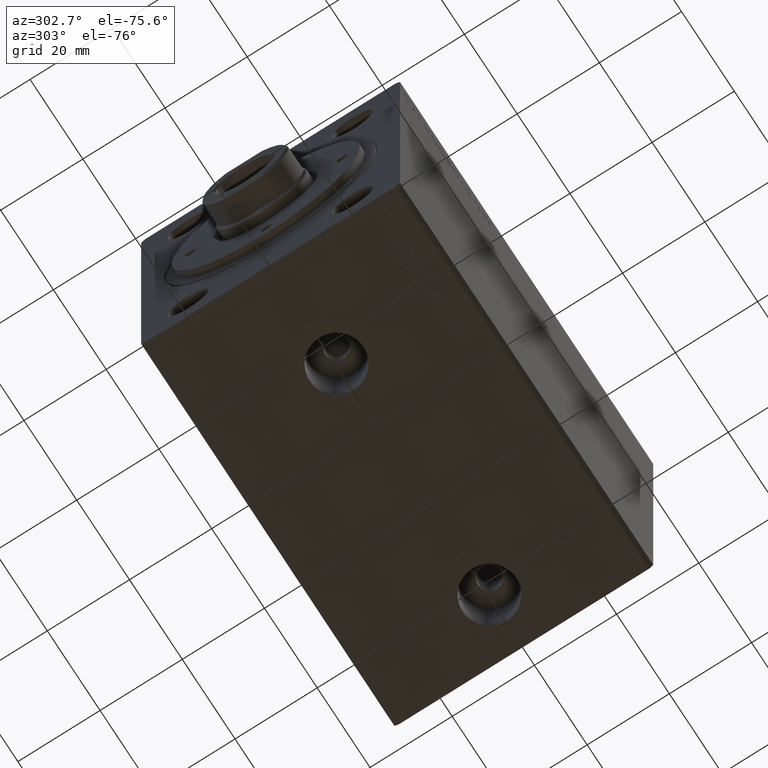
[diagram: clean part render]
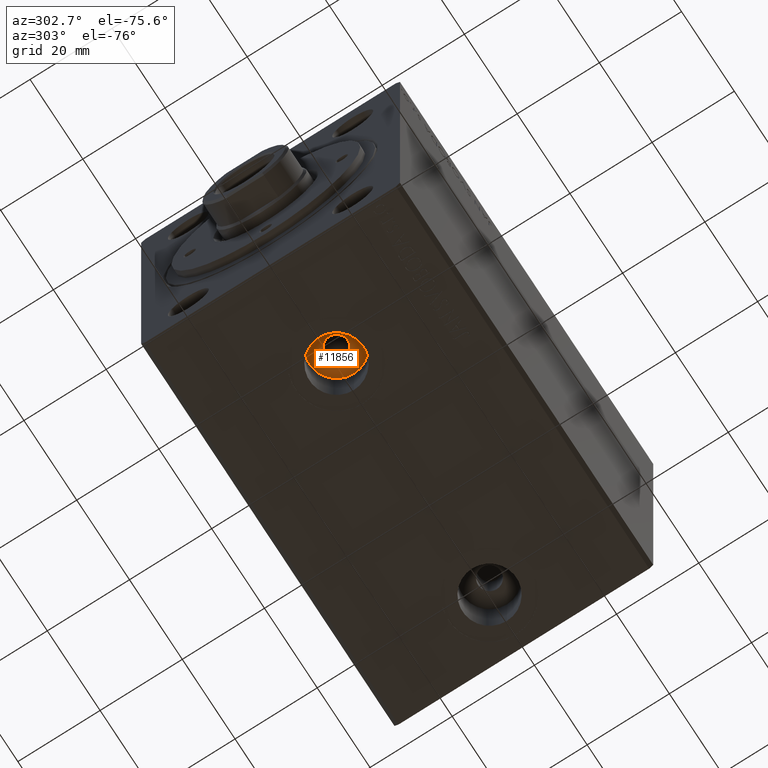
[diagram: same view with one face highlighted and labeled with its STEP entity id]
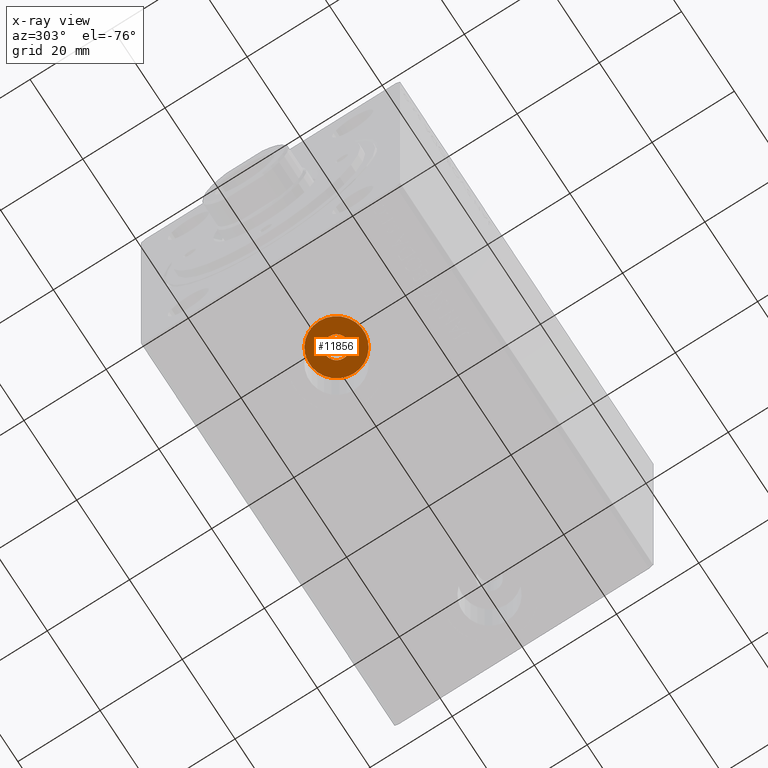
[diagram: x-ray of the same camera — body ghosted, the highlighted face saturated]
A machine part, auxiliary view. The second image highlights one B-rep face of the part: STEP entity #11856.
The next image is the same camera in x-ray: the body ghosted, the highlighted face saturated — about 0% of this face is hidden behind the body in this view.
In plain terms, the highlighted planar face has unit normal (0, 0, -1).
Its self-contained STEP definition (entity closure, byte-faithful):
#1212 = ORIENTED_EDGE ( 'NONE', *, *, #5040, .F. ) ;
#1926 = VERTEX_POINT ( 'NONE', #43923 ) ;
#2224 = CARTESIAN_POINT ( 'NONE',  ( 25.00000000000000000, -2.665753871451547918E-15, -28.80000000000000782 ) ) ;
#2990 = ORIENTED_EDGE ( 'NONE', *, *, #23328, .T. ) ;
#3232 = DIRECTION ( 'NONE',  ( -1.000000000000000000, 0.000000000000000000, 0.000000000000000000 ) ) ;
#5040 = EDGE_CURVE ( 'NONE', #27951, #40576, #5383, .T. ) ;
#5292 = EDGE_LOOP ( 'NONE', ( #34064, #2990 ) ) ;
#5383 = CIRCLE ( 'NONE', #17457, 2.749999999999999112 ) ;
#5698 = DIRECTION ( 'NONE',  ( 0.000000000000000000, 0.000000000000000000, -1.000000000000000000 ) ) ;
#6654 = DIRECTION ( 'NONE',  ( -1.000000000000000000, 0.000000000000000000, -0.000000000000000000 ) ) ;
#9567 = DIRECTION ( 'NONE',  ( -1.000000000000000000, 0.000000000000000000, 0.000000000000000000 ) ) ;
#10874 = FACE_BOUND ( 'NONE', #17905, .T. ) ;
#11856 = ADVANCED_FACE ( 'NONE', ( #10874, #17328 ), #37163, .T. ) ;
#13545 = DIRECTION ( 'NONE',  ( 0.000000000000000000, 0.000000000000000000, -1.000000000000000000 ) ) ;
#13771 = CARTESIAN_POINT ( 'NONE',  ( 25.00000000000000000, -2.665753871451547918E-15, -28.80000000000000782 ) ) ;
#14524 = CARTESIAN_POINT ( 'NONE',  ( 27.75000000000000000, -2.328976001686026261E-15, -28.80000000000000782 ) ) ;
#17328 = FACE_OUTER_BOUND ( 'NONE', #5292, .T. ) ;
#17457 = AXIS2_PLACEMENT_3D ( 'NONE', #36940, #43198, #30485 ) ;
#17905 = EDGE_LOOP ( 'NONE', ( #1212, #18244 ) ) ;
#18244 = ORIENTED_EDGE ( 'NONE', *, *, #37811, .F. ) ;
#18644 = CIRCLE ( 'NONE', #30756, 6.580000000000002736 ) ;
#19504 = CARTESIAN_POINT ( 'NONE',  ( 25.00000000000000000, -2.665753871451547918E-15, -28.80000000000000782 ) ) ;
#20059 = CARTESIAN_POINT ( 'NONE',  ( 22.25000000000000355, -2.665753871451547918E-15, -28.80000000000000782 ) ) ;
#21848 = CIRCLE ( 'NONE', #36783, 2.749999999999999112 ) ;
#22622 = VERTEX_POINT ( 'NONE', #33272 ) ;
#23328 = EDGE_CURVE ( 'NONE', #1926, #22622, #18644, .T. ) ;
#23576 = CARTESIAN_POINT ( 'NONE',  ( 25.00000000000000000, -2.665753871451547918E-15, -28.80000000000000782 ) ) ;
#24733 = AXIS2_PLACEMENT_3D ( 'NONE', #13771, #13545, #6654 ) ;
#27142 = DIRECTION ( 'NONE',  ( -1.000000000000000000, 0.000000000000000000, 0.000000000000000000 ) ) ;
#27951 = VERTEX_POINT ( 'NONE', #20059 ) ;
#30485 = DIRECTION ( 'NONE',  ( -1.000000000000000000, 0.000000000000000000, 0.000000000000000000 ) ) ;
#30756 = AXIS2_PLACEMENT_3D ( 'NONE', #23576, #41775, #27142 ) ;
#31469 = AXIS2_PLACEMENT_3D ( 'NONE', #2224, #36296, #9567 ) ;
#33272 = CARTESIAN_POINT ( 'NONE',  ( 18.41999999999999815, -2.665753871451547918E-15, -28.80000000000000782 ) ) ;
#34064 = ORIENTED_EDGE ( 'NONE', *, *, #43613, .T. ) ;
#36296 = DIRECTION ( 'NONE',  ( 0.000000000000000000, 0.000000000000000000, -1.000000000000000000 ) ) ;
#36783 = AXIS2_PLACEMENT_3D ( 'NONE', #19504, #5698, #3232 ) ;
#36940 = CARTESIAN_POINT ( 'NONE',  ( 25.00000000000000000, -2.665753871451547918E-15, -28.80000000000000782 ) ) ;
#37163 = PLANE ( 'NONE',  #24733 ) ;
#37811 = EDGE_CURVE ( 'NONE', #40576, #27951, #21848, .T. ) ;
#40576 = VERTEX_POINT ( 'NONE', #14524 ) ;
#41442 = CIRCLE ( 'NONE', #31469, 6.580000000000002736 ) ;
#41775 = DIRECTION ( 'NONE',  ( 0.000000000000000000, 0.000000000000000000, -1.000000000000000000 ) ) ;
#43198 = DIRECTION ( 'NONE',  ( 0.000000000000000000, 0.000000000000000000, -1.000000000000000000 ) ) ;
#43613 = EDGE_CURVE ( 'NONE', #22622, #1926, #41442, .T. ) ;
#43923 = CARTESIAN_POINT ( 'NONE',  ( 31.58000000000000540, -1.859936277612589271E-15, -28.80000000000000782 ) ) ;